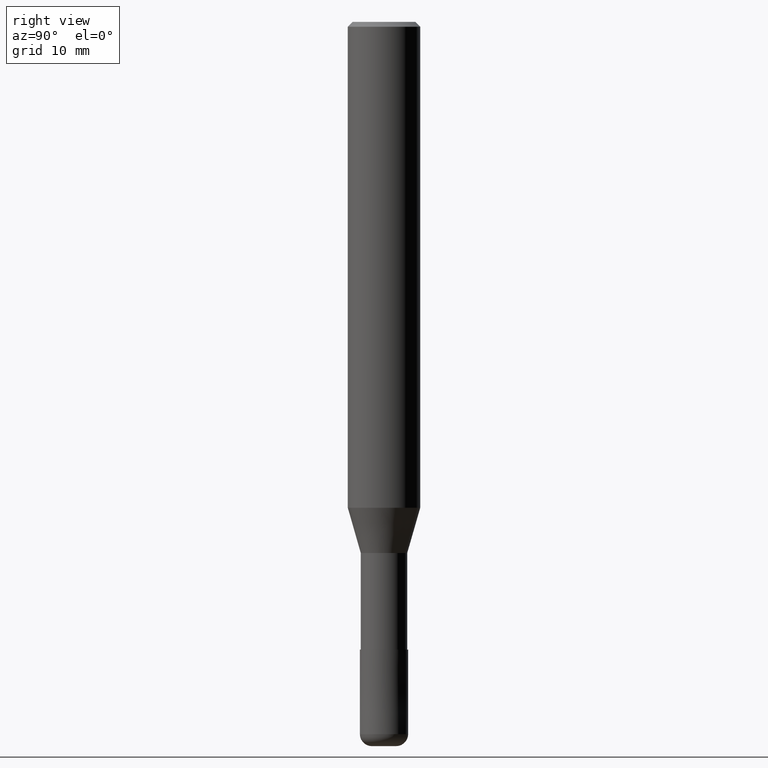
[diagram: clean part render]
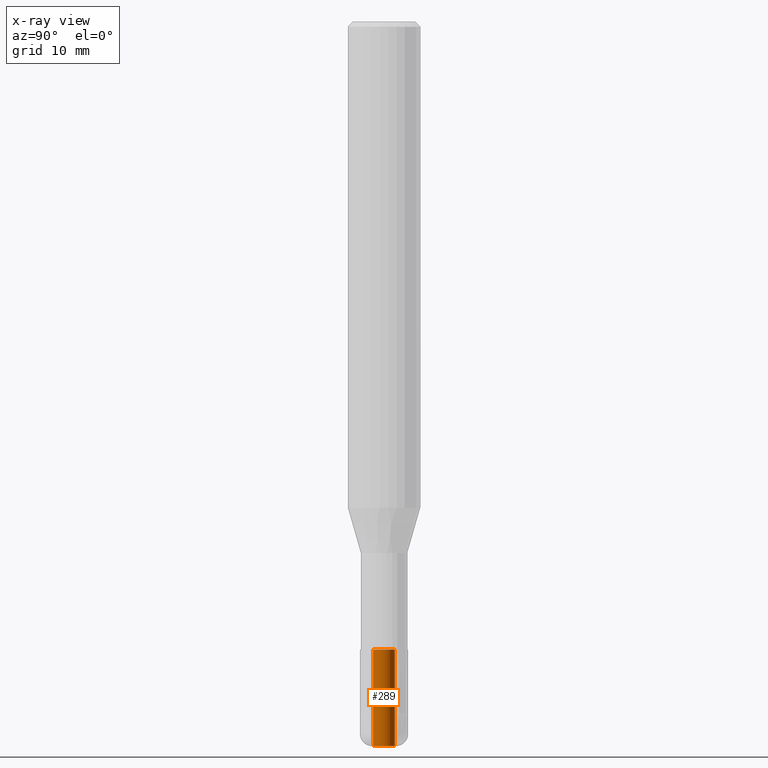
[diagram: x-ray — body ghosted, one internal face saturated and labeled with its STEP entity id]
A machine part, right view, then the same camera in x-ray: the body is ghosted and one INTERNAL B-rep face — a face not visible from any outside direction — is saturated and labeled: STEP entity #289.
In plain terms, the highlighted cylindrical surface (edge-blend (fillet) strip) has radius 0.9 mm, axis along (-0, -0, 1).
Its self-contained STEP definition (entity closure, byte-faithful):
#135=EDGE_CURVE('',#153,#151,#342,.T.);
#151=VERTEX_POINT('',#361);
#153=VERTEX_POINT('',#363);
#161=VERTEX_POINT('',#372);
#165=EDGE_CURVE('',#151,#191,#376,.T.);
#167=EDGE_CURVE('',#161,#153,#378,.T.);
#171=EDGE_CURVE('',#161,#191,#382,.T.);
#191=VERTEX_POINT('',#404);
#289=ADVANCED_FACE('',(#516),#517,.F.);
#342=CIRCLE('',#567,0.9);
#361=CARTESIAN_POINT('',(1.10214571844014E-016,-0.9,-60.0));
#363=CARTESIAN_POINT('',(0.0,0.9,-60.0));
#372=CARTESIAN_POINT('',(0.0,0.9,-52.0));
#376=LINE('',#604,#605);
#378=LINE('',#608,#609);
#382=CIRCLE('',#615,0.9);
#404=CARTESIAN_POINT('',(1.10214571844014E-016,-0.9,-52.0));
#516=FACE_OUTER_BOUND('',#787,.T.);
#517=CYLINDRICAL_SURFACE('',#788,0.9);
#567=AXIS2_PLACEMENT_3D('',#841,#842,#843);
#604=CARTESIAN_POINT('',(1.10214571844014E-016,-0.9,-56.0));
#605=VECTOR('',#882,1.0);
#608=CARTESIAN_POINT('',(-1.10214571844014E-016,0.9,-56.0));
#609=VECTOR('',#883,1.0);
#615=AXIS2_PLACEMENT_3D('',#887,#888,#889);
#787=EDGE_LOOP('',(#1058,#1059,#1060,#1061));
#788=AXIS2_PLACEMENT_3D('',#1062,#1063,#1064);
#841=CARTESIAN_POINT('',(0.0,0.0,-60.0));
#842=DIRECTION('',(0.0,0.0,-1.0));
#843=DIRECTION('',(0.0,1.0,0.0));
#882=DIRECTION('',(0.0,-0.0,1.0));
#883=DIRECTION('',(0.0,-0.0,-1.0));
#887=CARTESIAN_POINT('',(0.0,0.0,-52.0));
#888=DIRECTION('',(0.0,0.0,-1.0));
#889=DIRECTION('',(0.0,1.0,0.0));
#1058=ORIENTED_EDGE('',*,*,#167,.T.);
#1059=ORIENTED_EDGE('',*,*,#135,.T.);
#1060=ORIENTED_EDGE('',*,*,#165,.T.);
#1061=ORIENTED_EDGE('',*,*,#171,.F.);
#1062=CARTESIAN_POINT('',(0.0,0.0,-56.0));
#1063=DIRECTION('',(-0.0,-0.0,1.0));
#1064=DIRECTION('',(0.0,1.0,0.0));